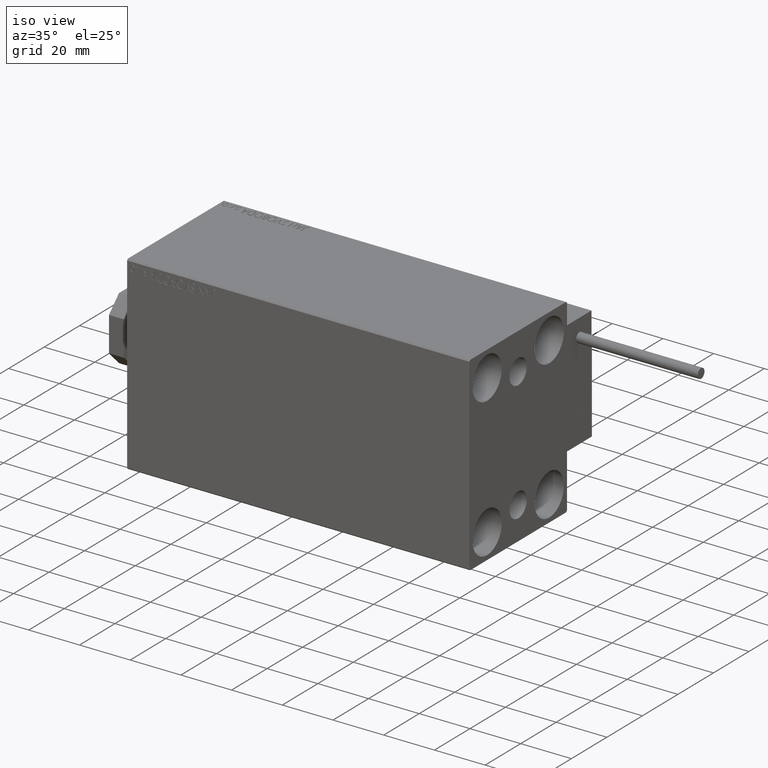
[diagram: clean part render]
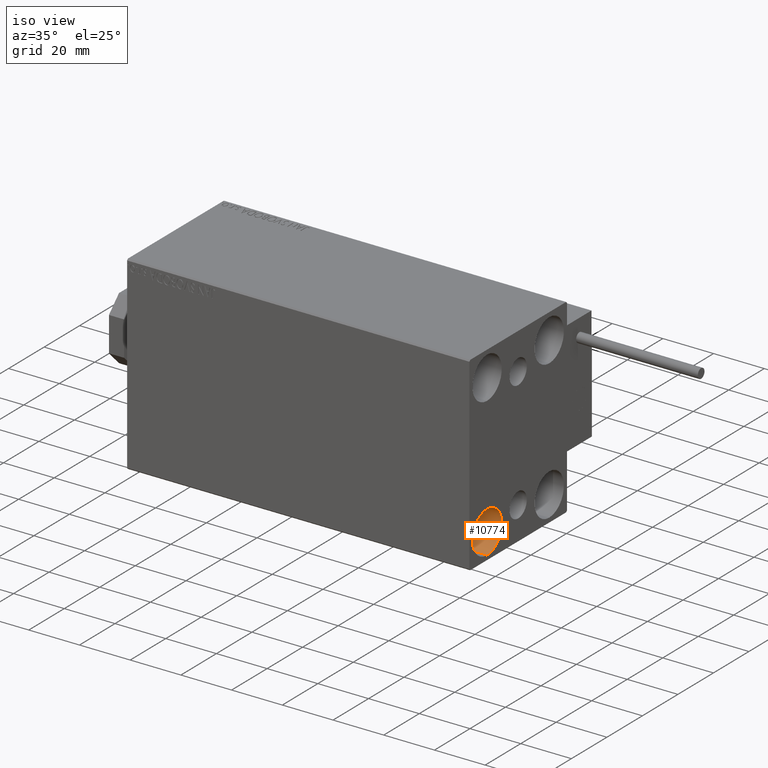
[diagram: same view with one face highlighted and labeled with its STEP entity id]
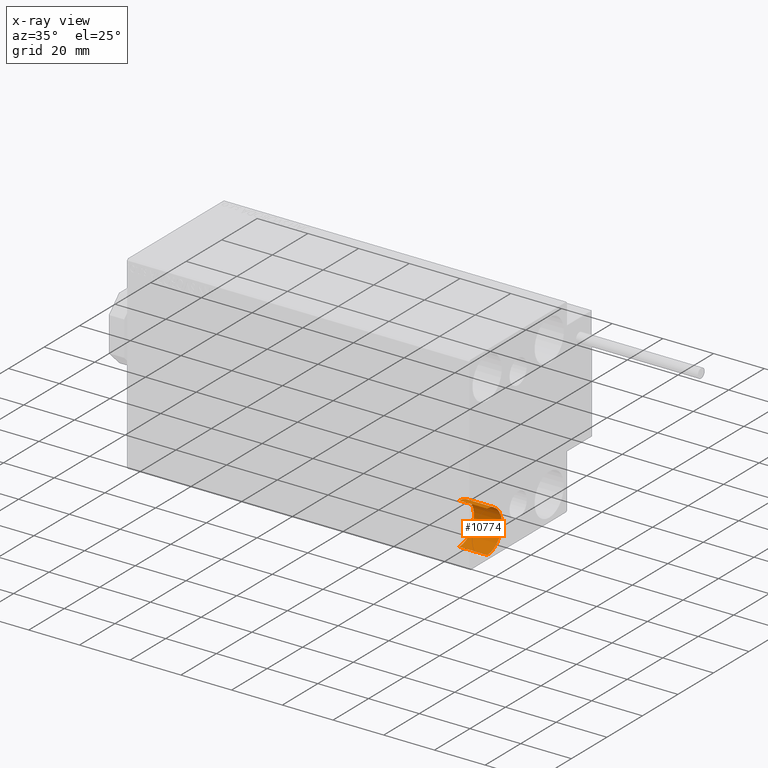
[diagram: x-ray of the same camera — body ghosted, the highlighted face saturated]
A machine part, iso view. The second image highlights one B-rep face of the part: STEP entity #10774.
The next image is the same camera in x-ray: the body ghosted, the highlighted face saturated — about 0% of this face is hidden behind the body in this view.
In plain terms, the highlighted cylindrical surface (edge-blend (fillet) strip) has radius 8.25 mm, axis along (1, 0, 0).
Its self-contained STEP definition (entity closure, byte-faithful):
#2650 = VERTEX_POINT ( 'NONE', #23903 ) ;
#2854 = CARTESIAN_POINT ( 'NONE',  ( 135.0000000000000000, -17.50000000000000355, -27.50000000000000355 ) ) ;
#3725 = DIRECTION ( 'NONE',  ( 0.000000000000000000, 0.000000000000000000, -1.000000000000000000 ) ) ;
#6767 = FACE_OUTER_BOUND ( 'NONE', #42426, .T. ) ;
#7263 = DIRECTION ( 'NONE',  ( 1.000000000000000000, -0.000000000000000000, -0.000000000000000000 ) ) ;
#7973 = LINE ( 'NONE', #46092, #23401 ) ;
#7979 = EDGE_CURVE ( 'NONE', #40740, #2650, #15123, .T. ) ;
#10774 = ADVANCED_FACE ( 'NONE', ( #6767 ), #18644, .F. ) ;
#11374 = ORIENTED_EDGE ( 'NONE', *, *, #42505, .T. ) ;
#11629 = AXIS2_PLACEMENT_3D ( 'NONE', #47002, #27863, #43233 ) ;
#14321 = VERTEX_POINT ( 'NONE', #39634 ) ;
#15094 = CARTESIAN_POINT ( 'NONE',  ( 124.0000000000000142, -17.50000000000000355, -27.50000000000000355 ) ) ;
#15123 = CIRCLE ( 'NONE', #39314, 8.250000000000000000 ) ;
#18644 = CYLINDRICAL_SURFACE ( 'NONE', #46628, 8.250000000000000000 ) ;
#19313 = CARTESIAN_POINT ( 'NONE',  ( 124.0000000000000142, -17.50000000000000355, -19.25000000000000355 ) ) ;
#19740 = EDGE_CURVE ( 'NONE', #43558, #40740, #48158, .T. ) ;
#23401 = VECTOR ( 'NONE', #27453, 1000.000000000000000 ) ;
#23903 = CARTESIAN_POINT ( 'NONE',  ( 135.0000000000000000, -17.50000000000000355, -35.75000000000000711 ) ) ;
#26973 = CIRCLE ( 'NONE', #11629, 8.250000000000000000 ) ;
#27453 = DIRECTION ( 'NONE',  ( 1.000000000000000000, -0.000000000000000000, -0.000000000000000000 ) ) ;
#27863 = DIRECTION ( 'NONE',  ( -1.000000000000000000, -0.000000000000000000, -0.000000000000000000 ) ) ;
#32185 = EDGE_CURVE ( 'NONE', #14321, #2650, #7973, .T. ) ;
#32324 = VECTOR ( 'NONE', #44379, 1000.000000000000000 ) ;
#33536 = CARTESIAN_POINT ( 'NONE',  ( 124.0000000000000142, -17.50000000000000355, -19.25000000000000355 ) ) ;
#33660 = DIRECTION ( 'NONE',  ( -1.000000000000000000, -0.000000000000000000, -0.000000000000000000 ) ) ;
#34069 = ORIENTED_EDGE ( 'NONE', *, *, #32185, .T. ) ;
#34554 = ORIENTED_EDGE ( 'NONE', *, *, #7979, .F. ) ;
#39314 = AXIS2_PLACEMENT_3D ( 'NONE', #2854, #33660, #45500 ) ;
#39634 = CARTESIAN_POINT ( 'NONE',  ( 124.0000000000000142, -17.50000000000000355, -35.75000000000000711 ) ) ;
#40740 = VERTEX_POINT ( 'NONE', #43458 ) ;
#42426 = EDGE_LOOP ( 'NONE', ( #48638, #11374, #34069, #34554 ) ) ;
#42505 = EDGE_CURVE ( 'NONE', #43558, #14321, #26973, .T. ) ;
#43233 = DIRECTION ( 'NONE',  ( 0.000000000000000000, 0.000000000000000000, 1.000000000000000000 ) ) ;
#43458 = CARTESIAN_POINT ( 'NONE',  ( 135.0000000000000000, -17.50000000000000355, -19.25000000000000355 ) ) ;
#43558 = VERTEX_POINT ( 'NONE', #19313 ) ;
#44379 = DIRECTION ( 'NONE',  ( 1.000000000000000000, -0.000000000000000000, -0.000000000000000000 ) ) ;
#45500 = DIRECTION ( 'NONE',  ( 0.000000000000000000, 0.000000000000000000, 1.000000000000000000 ) ) ;
#46092 = CARTESIAN_POINT ( 'NONE',  ( 124.0000000000000142, -17.50000000000000355, -35.75000000000000711 ) ) ;
#46628 = AXIS2_PLACEMENT_3D ( 'NONE', #15094, #7263, #3725 ) ;
#47002 = CARTESIAN_POINT ( 'NONE',  ( 124.0000000000000142, -17.50000000000000355, -27.50000000000000355 ) ) ;
#48158 = LINE ( 'NONE', #33536, #32324 ) ;
#48638 = ORIENTED_EDGE ( 'NONE', *, *, #19740, .F. ) ;